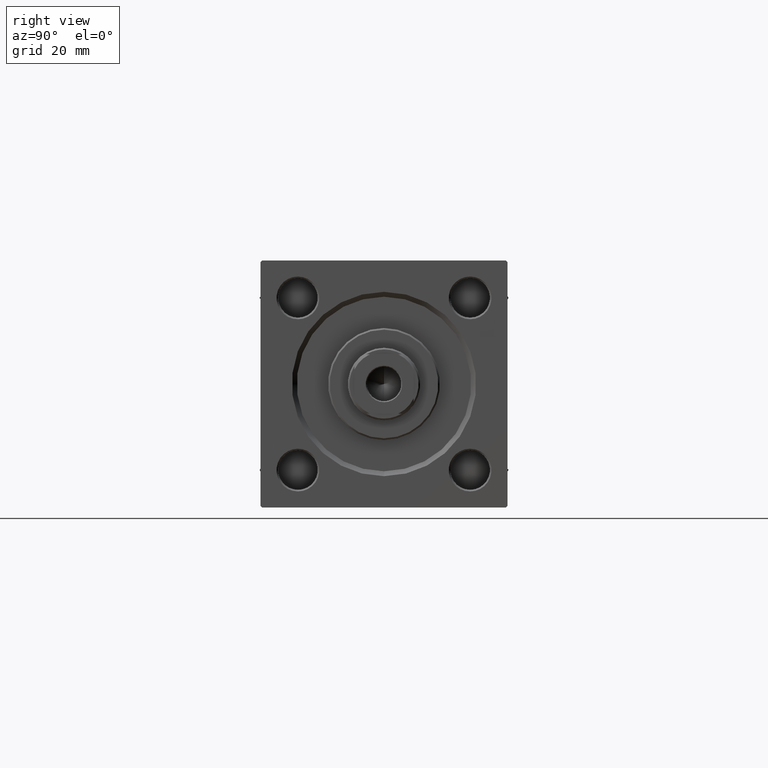
[diagram: clean part render]
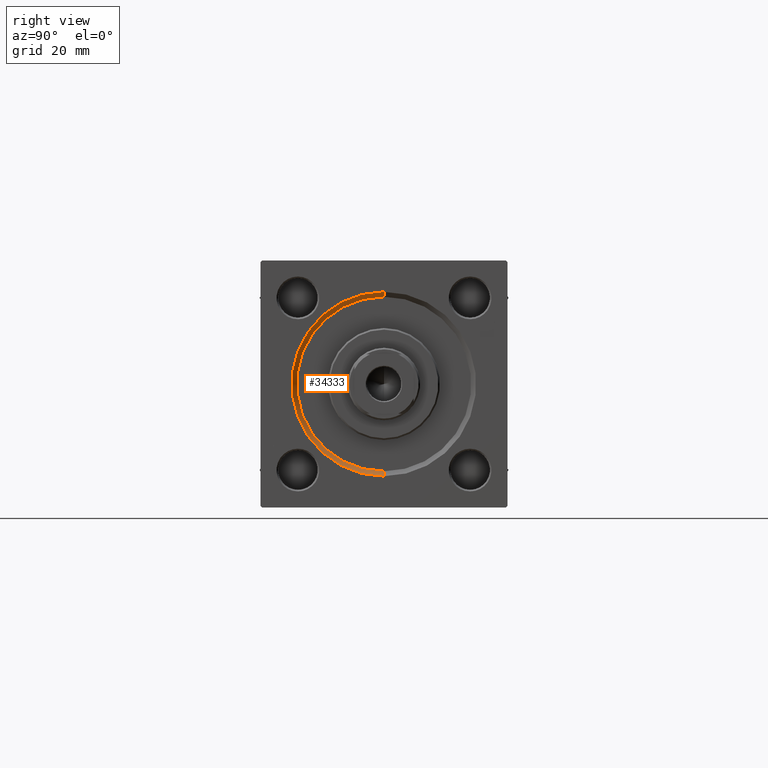
[diagram: same view with one face highlighted and labeled with its STEP entity id]
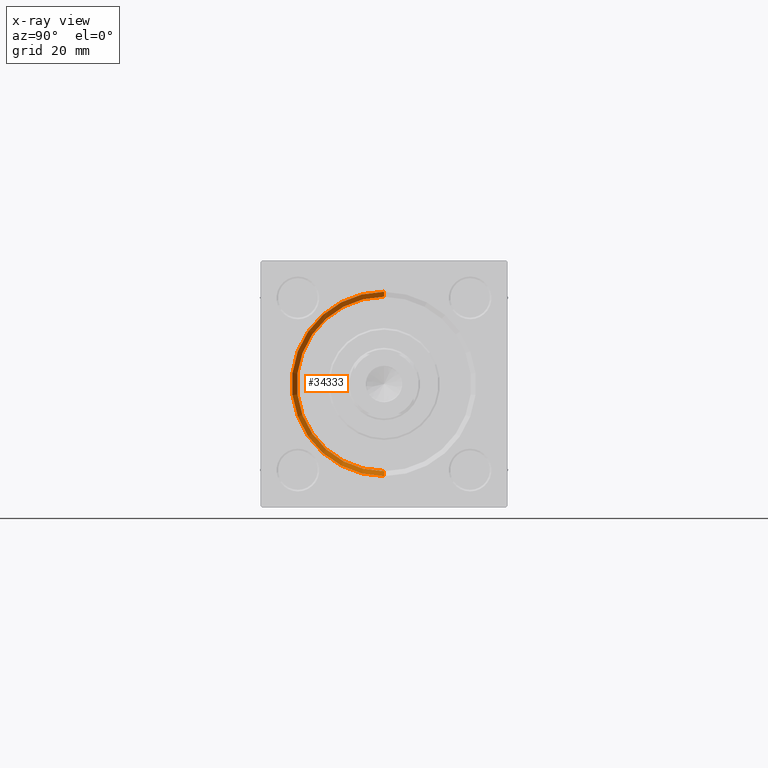
[diagram: x-ray of the same camera — body ghosted, the highlighted face saturated]
A machine part, right view. The second image highlights one B-rep face of the part: STEP entity #34333.
The next image is the same camera in x-ray: the body ghosted, the highlighted face saturated — about 0% of this face is hidden behind the body in this view.
In plain terms, the highlighted conical surface has half-angle 45 deg.
Its self-contained STEP definition (entity closure, byte-faithful):
#994 = DIRECTION ( 'NONE',  ( 0.7071067811865361374, 0.000000000000000000, -0.7071067811865588970 ) ) ;
#2294 = EDGE_LOOP ( 'NONE', ( #41687, #45636, #37811, #38571 ) ) ;
#2482 = CARTESIAN_POINT ( 'NONE',  ( 154.0000000000000000, 0.000000000000000000, -27.99999999999999645 ) ) ;
#5473 = DIRECTION ( 'NONE',  ( 0.000000000000000000, 0.000000000000000000, 1.000000000000000000 ) ) ;
#5717 = DIRECTION ( 'NONE',  ( 1.000000000000000000, 0.000000000000000000, 0.000000000000000000 ) ) ;
#8669 = DIRECTION ( 'NONE',  ( 0.000000000000000000, 0.000000000000000000, 1.000000000000000000 ) ) ;
#10618 = CARTESIAN_POINT ( 'NONE',  ( 152.5000000000000568, 0.000000000000000000, 0.000000000000000000 ) ) ;
#10736 = CARTESIAN_POINT ( 'NONE',  ( 152.5000000000000568, 3.245314017740486554E-15, 26.50000000000000355 ) ) ;
#11242 = LINE ( 'NONE', #10736, #47686 ) ;
#14841 = EDGE_CURVE ( 'NONE', #42194, #24936, #46964, .T. ) ;
#15974 = CARTESIAN_POINT ( 'NONE',  ( 152.5000000000000568, 0.000000000000000000, -26.50000000000000355 ) ) ;
#16366 = FACE_OUTER_BOUND ( 'NONE', #2294, .T. ) ;
#20137 = CARTESIAN_POINT ( 'NONE',  ( 154.0000000000000000, 3.429011037612588881E-15, 27.99999999999999645 ) ) ;
#20897 = CONICAL_SURFACE ( 'NONE', #49259, 26.50000000000000355, 0.7853981633974644883 ) ;
#24627 = CARTESIAN_POINT ( 'NONE',  ( 154.0000000000000000, 0.000000000000000000, 0.000000000000000000 ) ) ;
#24936 = VERTEX_POINT ( 'NONE', #20137 ) ;
#26089 = DIRECTION ( 'NONE',  ( 0.000000000000000000, 0.000000000000000000, -1.000000000000000000 ) ) ;
#27659 = LINE ( 'NONE', #15974, #34820 ) ;
#29074 = CARTESIAN_POINT ( 'NONE',  ( 152.5000000000000568, 0.000000000000000000, 0.000000000000000000 ) ) ;
#30527 = DIRECTION ( 'NONE',  ( 0.7071067811865361374, 8.659560562355073374E-17, 0.7071067811865588970 ) ) ;
#30683 = EDGE_CURVE ( 'NONE', #48438, #24936, #11242, .T. ) ;
#31672 = AXIS2_PLACEMENT_3D ( 'NONE', #29074, #5717, #5473 ) ;
#34333 = ADVANCED_FACE ( 'NONE', ( #16366 ), #20897, .F. ) ;
#34820 = VECTOR ( 'NONE', #994, 1000.000000000000114 ) ;
#37484 = EDGE_CURVE ( 'NONE', #46462, #42194, #27659, .T. ) ;
#37811 = ORIENTED_EDGE ( 'NONE', *, *, #14841, .F. ) ;
#38571 = ORIENTED_EDGE ( 'NONE', *, *, #37484, .F. ) ;
#41376 = EDGE_CURVE ( 'NONE', #48438, #46462, #41401, .T. ) ;
#41401 = CIRCLE ( 'NONE', #31672, 26.50000000000000355 ) ;
#41687 = ORIENTED_EDGE ( 'NONE', *, *, #41376, .F. ) ;
#42194 = VERTEX_POINT ( 'NONE', #2482 ) ;
#43439 = DIRECTION ( 'NONE',  ( -1.000000000000000000, -0.000000000000000000, 0.000000000000000000 ) ) ;
#45636 = ORIENTED_EDGE ( 'NONE', *, *, #30683, .T. ) ;
#46462 = VERTEX_POINT ( 'NONE', #47726 ) ;
#46964 = CIRCLE ( 'NONE', #47743, 27.99999999999999645 ) ;
#47686 = VECTOR ( 'NONE', #30527, 1000.000000000000114 ) ;
#47726 = CARTESIAN_POINT ( 'NONE',  ( 152.5000000000000568, 0.000000000000000000, -26.50000000000000355 ) ) ;
#47743 = AXIS2_PLACEMENT_3D ( 'NONE', #24627, #43439, #8669 ) ;
#48077 = CARTESIAN_POINT ( 'NONE',  ( 152.5000000000000568, 3.245314017740486554E-15, 26.50000000000000355 ) ) ;
#48438 = VERTEX_POINT ( 'NONE', #48077 ) ;
#49259 = AXIS2_PLACEMENT_3D ( 'NONE', #10618, #49691, #26089 ) ;
#49691 = DIRECTION ( 'NONE',  ( 1.000000000000000000, 0.000000000000000000, 0.000000000000000000 ) ) ;